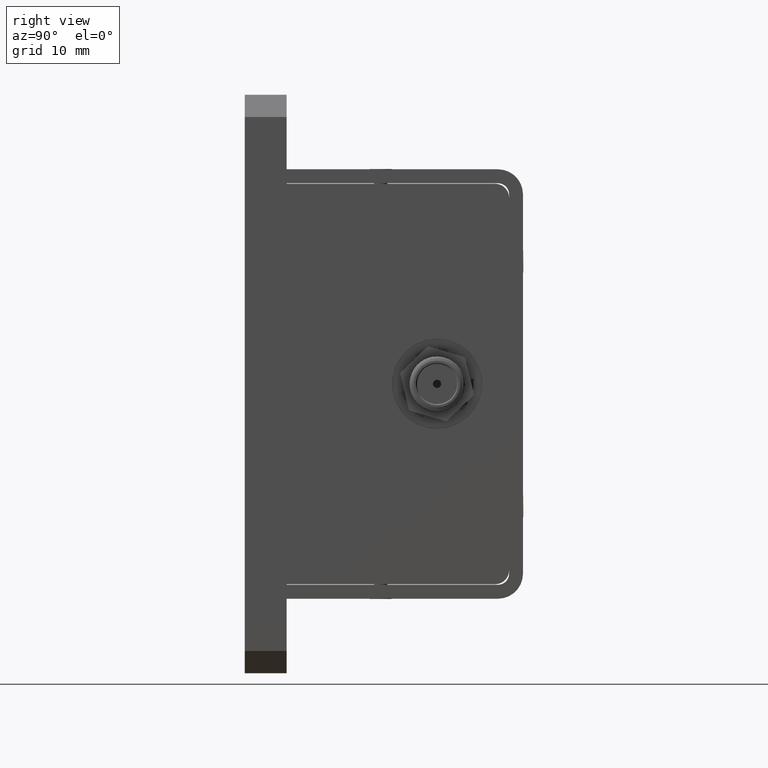
[diagram: clean part render]
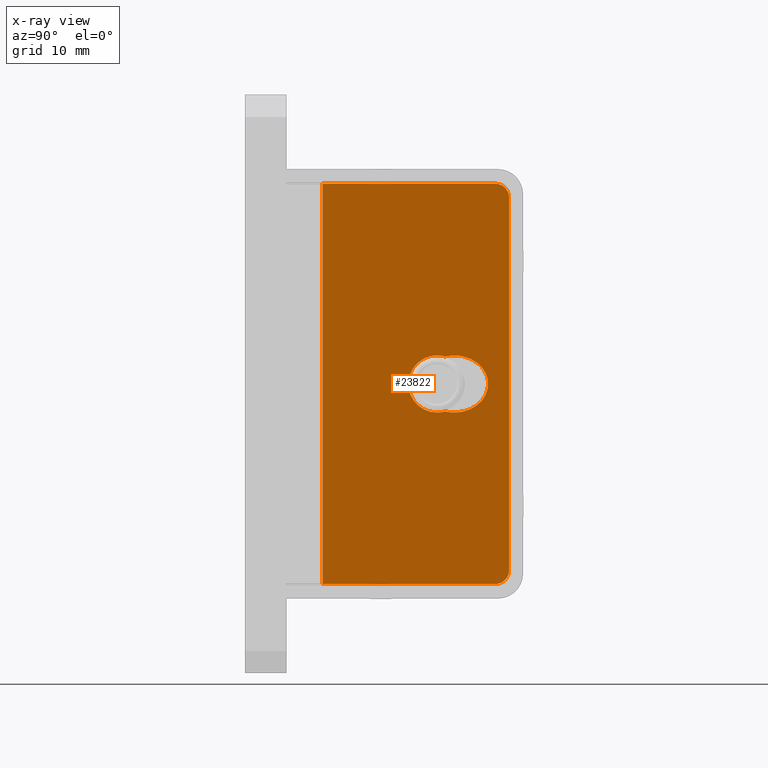
[diagram: x-ray — body ghosted, one internal face saturated and labeled with its STEP entity id]
A machine part, right view, then the same camera in x-ray: the body is ghosted and one INTERNAL B-rep face — a face not visible from any outside direction — is saturated and labeled: STEP entity #23822.
In plain terms, the highlighted planar face has unit normal (1, 0, -0).
Its self-contained STEP definition (entity closure, byte-faithful):
#6857 = DIRECTION ( 'NONE',  ( -1.000000000000000000, -0.0000000000000000000, 0.0000000000000000000 ) ) ;
#6865 = DIRECTION ( 'NONE',  ( 0.0000000000000000000, -3.188927619063342400E-015, -1.000000000000000000 ) ) ;
#8545 = CARTESIAN_POINT ( 'NONE',  ( 12.70000000000001000, 21.94559999999999900, -6.672013369141569200E-016 ) ) ;
#8555 = AXIS2_PLACEMENT_3D ( 'NONE', #8545, #6857, #6865 ) ;
#8557 = CIRCLE ( 'NONE', #8555, 3.263899999999999600 ) ;
#8990 = CARTESIAN_POINT ( 'NONE',  ( 12.70000000000001000, 21.94559999999999900, -3.263900000000000500 ) ) ;
#9324 = CARTESIAN_POINT ( 'NONE',  ( 12.70000000000001000, 22.85601659978420100, -3.134355567710430400 ) ) ;
#9325 = CARTESIAN_POINT ( 'NONE',  ( 12.70000000000001000, 22.85601659978420100, 3.134355567710428700 ) ) ;
#9343 = DIRECTION ( 'NONE',  ( -1.000000000000000000, -0.0000000000000000000, 0.0000000000000000000 ) ) ;
#9345 = CARTESIAN_POINT ( 'NONE',  ( 12.70000000000001000, 21.94559999999999900, 3.263899999999998700 ) ) ;
#9356 = CARTESIAN_POINT ( 'NONE',  ( 12.70000000000001000, 21.94559999999999900, -6.672013369141569200E-016 ) ) ;
#9396 = DIRECTION ( 'NONE',  ( 0.0000000000000000000, 0.0000000000000000000, -1.000000000000000000 ) ) ;
#9397 = AXIS2_PLACEMENT_3D ( 'NONE', #9356, #9343, #9396 ) ;
#9398 = CIRCLE ( 'NONE', #9397, 3.263899999999999600 ) ;
#9480 = CARTESIAN_POINT ( 'NONE',  ( 12.70000000000001000, 22.85601659978420100, -3.134355567710430400 ) ) ;
#9481 = CARTESIAN_POINT ( 'NONE',  ( 12.70000000000000800, 25.54178958135919000, -3.795934534681046500 ) ) ;
#9482 = CARTESIAN_POINT ( 'NONE',  ( 12.70000000000000800, 27.77828058304561800, -2.371801646419040100 ) ) ;
#9483 = CARTESIAN_POINT ( 'NONE',  ( 12.70000000000001000, 27.77828058304561400, 2.064923872916543100E-015 ) ) ;
#9484 = CARTESIAN_POINT ( 'NONE',  ( 12.70000000000000800, 27.77828058304560700, 2.371801646419044100 ) ) ;
#9485 = CARTESIAN_POINT ( 'NONE',  ( 12.70000000000000800, 25.54178958135919000, 3.795934534681047800 ) ) ;
#9486 = CARTESIAN_POINT ( 'NONE',  ( 12.70000000000001000, 22.85601659978420100, 3.134355567710428700 ) ) ;
#9488 =( BOUNDED_CURVE ( )  B_SPLINE_CURVE ( 3, ( #9486, #9485, #9484, #9483, #9482, #9481, #9480 ),
 .UNSPECIFIED., .F., .T. ) 
 B_SPLINE_CURVE_WITH_KNOTS ( ( 4, 3, 4 ),
 ( 4.429703858555882300, 6.283185307179585300, 8.136666755803288400 ),
 .UNSPECIFIED. ) 
 CURVE ( )  GEOMETRIC_REPRESENTATION_ITEM ( )  RATIONAL_B_SPLINE_CURVE ( ( 1.000000000000000000, 0.7336290017934025100, 0.7336290017934025100, 1.000000000000000000, 0.7336290017934025100, 0.7336290017934025100, 1.000000000000000000 ) ) 
 REPRESENTATION_ITEM ( '' )  );
#9497 = CIRCLE ( 'NONE', #9509, 3.263899999999999600 ) ;
#9508 = DIRECTION ( 'NONE',  ( 0.0000000000000000000, 0.0000000000000000000, -1.000000000000000000 ) ) ;
#9509 = AXIS2_PLACEMENT_3D ( 'NONE', #9514, #9515, #9508 ) ;
#9514 = CARTESIAN_POINT ( 'NONE',  ( 12.70000000000001000, 21.94559999999999900, -6.672013369141569200E-016 ) ) ;
#9515 = DIRECTION ( 'NONE',  ( -1.000000000000000000, -0.0000000000000000000, 0.0000000000000000000 ) ) ;
#9887 = CARTESIAN_POINT ( 'NONE',  ( 12.70000000000001000, 30.17520000000000000, -21.27250000000000100 ) ) ;
#10005 = DIRECTION ( 'NONE',  ( -0.0000000000000000000, -0.0000000000000000000, -1.000000000000000000 ) ) ;
#10006 = VECTOR ( 'NONE', #10005, 1000.000000000000000 ) ;
#10007 = LINE ( 'NONE', #10014, #10006 ) ;
#10014 = CARTESIAN_POINT ( 'NONE',  ( 12.70000000000001000, 30.17520000000000000, -22.85999999999999900 ) ) ;
#10109 = CARTESIAN_POINT ( 'NONE',  ( 12.70000000000001000, 8.889999999999995200, 22.85999999999999900 ) ) ;
#10118 = CARTESIAN_POINT ( 'NONE',  ( 12.70000000000001000, 30.17520000000000000, 21.27249999999999400 ) ) ;
#10192 = DIRECTION ( 'NONE',  ( 0.0000000000000000000, -0.0000000000000000000, 1.000000000000000000 ) ) ;
#10193 = VECTOR ( 'NONE', #10192, 1000.000000000000000 ) ;
#10204 = CARTESIAN_POINT ( 'NONE',  ( 12.70000000000001000, 8.889999999999995200, -22.85999999999999900 ) ) ;
#10214 = CARTESIAN_POINT ( 'NONE',  ( 12.70000000000001000, 8.889999999999995200, -22.85999999999999900 ) ) ;
#10216 = LINE ( 'NONE', #10214, #10193 ) ;
#10415 = DIRECTION ( 'NONE',  ( -0.0000000000000000000, 1.000000000000000000, -0.0000000000000000000 ) ) ;
#10416 = VECTOR ( 'NONE', #10415, 1000.000000000000000 ) ;
#10417 = CARTESIAN_POINT ( 'NONE',  ( 12.70000000000001000, -52.30180111621396600, -22.85999999999999900 ) ) ;
#10419 = CARTESIAN_POINT ( 'NONE',  ( 12.70000000000001000, 28.58769999999999500, -22.85999999999999900 ) ) ;
#10434 = LINE ( 'NONE', #10417, #10416 ) ;
#10463 = AXIS2_PLACEMENT_3D ( 'NONE', #10498, #10497, #10496 ) ;
#10464 = PLANE ( 'NONE',  #10463 ) ;
#10465 = FACE_BOUND ( 'NONE', #23829, .T. ) ;
#10474 = FACE_OUTER_BOUND ( 'NONE', #23871, .T. ) ;
#10487 = CARTESIAN_POINT ( 'NONE',  ( 12.70000000000001000, -52.30180111621396600, 22.85999999999999900 ) ) ;
#10496 = DIRECTION ( 'NONE',  ( -0.0000000000000000000, 0.0000000000000000000, -1.000000000000000000 ) ) ;
#10497 = DIRECTION ( 'NONE',  ( 1.000000000000000000, 0.0000000000000000000, -0.0000000000000000000 ) ) ;
#10498 = CARTESIAN_POINT ( 'NONE',  ( 12.70000000000001000, -52.30180111621396600, -22.85999999999999900 ) ) ;
#10514 = CARTESIAN_POINT ( 'NONE',  ( 12.70000000000001000, 28.58769999999999500, 22.85999999999999900 ) ) ;
#10536 = DIRECTION ( 'NONE',  ( 0.0000000000000000000, 0.0000000000000000000, -1.000000000000000000 ) ) ;
#10537 = DIRECTION ( 'NONE',  ( -1.000000000000000000, -0.0000000000000000000, 0.0000000000000000000 ) ) ;
#10538 = CARTESIAN_POINT ( 'NONE',  ( 12.70000000000001000, 28.58770000000000200, 21.27249999999999400 ) ) ;
#10539 = AXIS2_PLACEMENT_3D ( 'NONE', #10538, #10537, #10536 ) ;
#10551 = DIRECTION ( 'NONE',  ( -0.0000000000000000000, 1.000000000000000000, -0.0000000000000000000 ) ) ;
#10552 = VECTOR ( 'NONE', #10551, 1000.000000000000000 ) ;
#10553 = LINE ( 'NONE', #10487, #10552 ) ;
#10556 = CIRCLE ( 'NONE', #10539, 1.587499999999998600 ) ;
#10609 = DIRECTION ( 'NONE',  ( 0.0000000000000000000, 0.0000000000000000000, -1.000000000000000000 ) ) ;
#10610 = DIRECTION ( 'NONE',  ( -1.000000000000000000, -0.0000000000000000000, 0.0000000000000000000 ) ) ;
#10611 = AXIS2_PLACEMENT_3D ( 'NONE', #10623, #10610, #10609 ) ;
#10612 = CIRCLE ( 'NONE', #10611, 1.587499999999998600 ) ;
#10623 = CARTESIAN_POINT ( 'NONE',  ( 12.70000000000001000, 28.58770000000000200, -21.27250000000000100 ) ) ;
#23427 = VERTEX_POINT ( 'NONE', #8990 ) ;
#23462 = EDGE_CURVE ( 'NONE', #23470, #23427, #8557, .T. ) ;
#23469 = VERTEX_POINT ( 'NONE', #9325 ) ;
#23470 = VERTEX_POINT ( 'NONE', #9324 ) ;
#23475 = EDGE_CURVE ( 'NONE', #23427, #23481, #9398, .T. ) ;
#23481 = VERTEX_POINT ( 'NONE', #9345 ) ;
#23521 = EDGE_CURVE ( 'NONE', #23469, #23470, #9488, .T. ) ;
#23523 = EDGE_CURVE ( 'NONE', #23481, #23469, #9497, .T. ) ;
#23651 = VERTEX_POINT ( 'NONE', #9887 ) ;
#23678 = EDGE_CURVE ( 'NONE', #23697, #23651, #10007, .T. ) ;
#23697 = VERTEX_POINT ( 'NONE', #10118 ) ;
#23707 = VERTEX_POINT ( 'NONE', #10204 ) ;
#23708 = VERTEX_POINT ( 'NONE', #10109 ) ;
#23709 = EDGE_CURVE ( 'NONE', #23707, #23708, #10216, .T. ) ;
#23794 = EDGE_CURVE ( 'NONE', #23707, #23795, #10434, .T. ) ;
#23795 = VERTEX_POINT ( 'NONE', #10419 ) ;
#23822 = ADVANCED_FACE ( 'NONE', ( #10465, #10474 ), #10464, .F. ) ;
#23829 = EDGE_LOOP ( 'NONE', ( #23837, #23870, #23868, #23872 ) ) ;
#23837 = ORIENTED_EDGE ( 'NONE', *, *, #23462, .F. ) ;
#23845 = VERTEX_POINT ( 'NONE', #10514 ) ;
#23846 = EDGE_CURVE ( 'NONE', #23708, #23845, #10553, .T. ) ;
#23854 = EDGE_CURVE ( 'NONE', #23845, #23697, #10556, .T. ) ;
#23868 = ORIENTED_EDGE ( 'NONE', *, *, #23523, .F. ) ;
#23869 = ORIENTED_EDGE ( 'NONE', *, *, #23678, .T. ) ;
#23870 = ORIENTED_EDGE ( 'NONE', *, *, #23521, .F. ) ;
#23871 = EDGE_LOOP ( 'NONE', ( #23869, #23875, #23873, #23879, #23874, #23876 ) ) ;
#23872 = ORIENTED_EDGE ( 'NONE', *, *, #23475, .F. ) ;
#23873 = ORIENTED_EDGE ( 'NONE', *, *, #23794, .F. ) ;
#23874 = ORIENTED_EDGE ( 'NONE', *, *, #23846, .T. ) ;
#23875 = ORIENTED_EDGE ( 'NONE', *, *, #23883, .T. ) ;
#23876 = ORIENTED_EDGE ( 'NONE', *, *, #23854, .T. ) ;
#23879 = ORIENTED_EDGE ( 'NONE', *, *, #23709, .T. ) ;
#23883 = EDGE_CURVE ( 'NONE', #23651, #23795, #10612, .T. ) ;